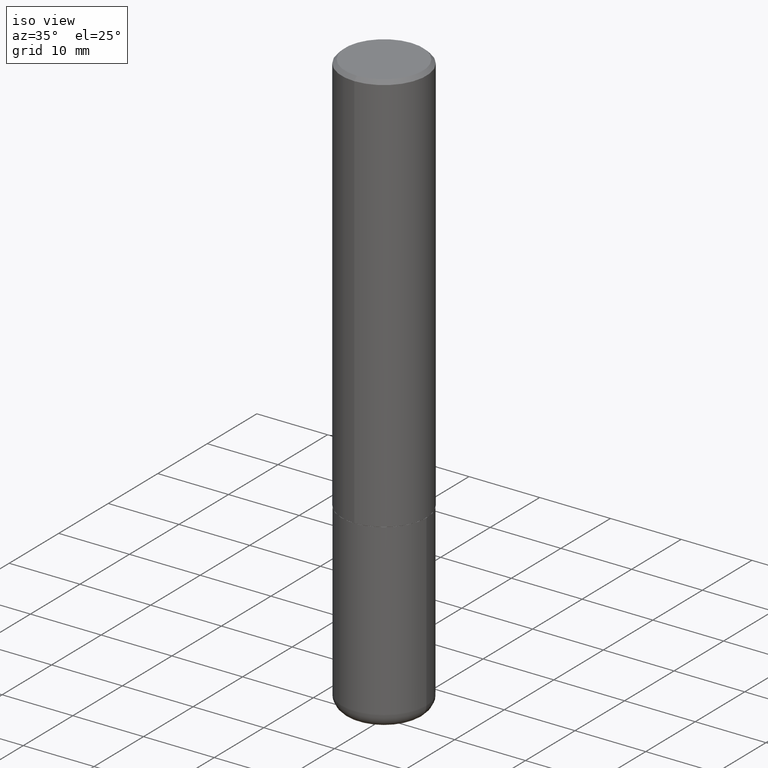
[diagram: clean part render]
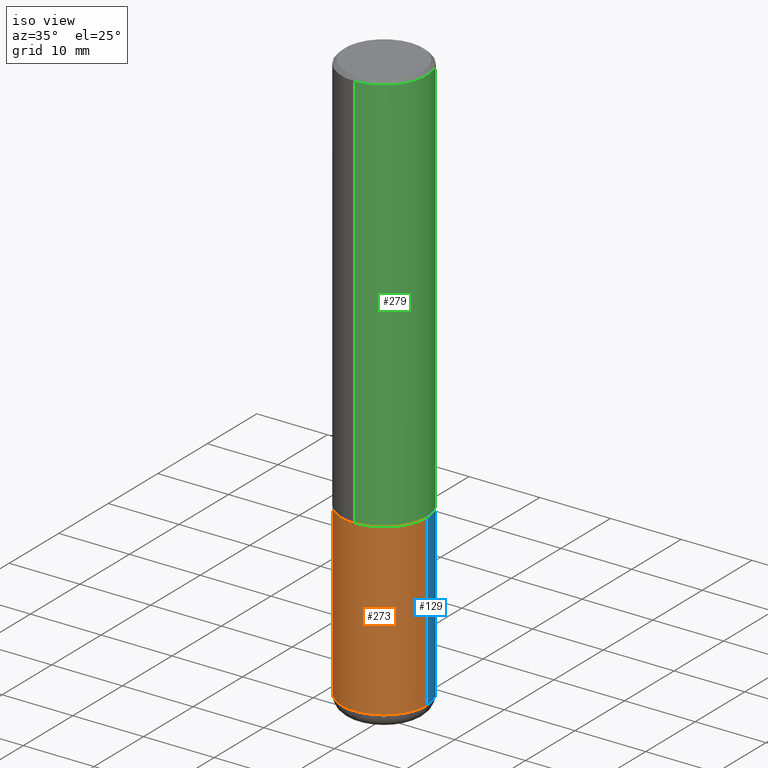
[diagram: same view with three faces highlighted in distinct colors, each labeled with its STEP entity id]
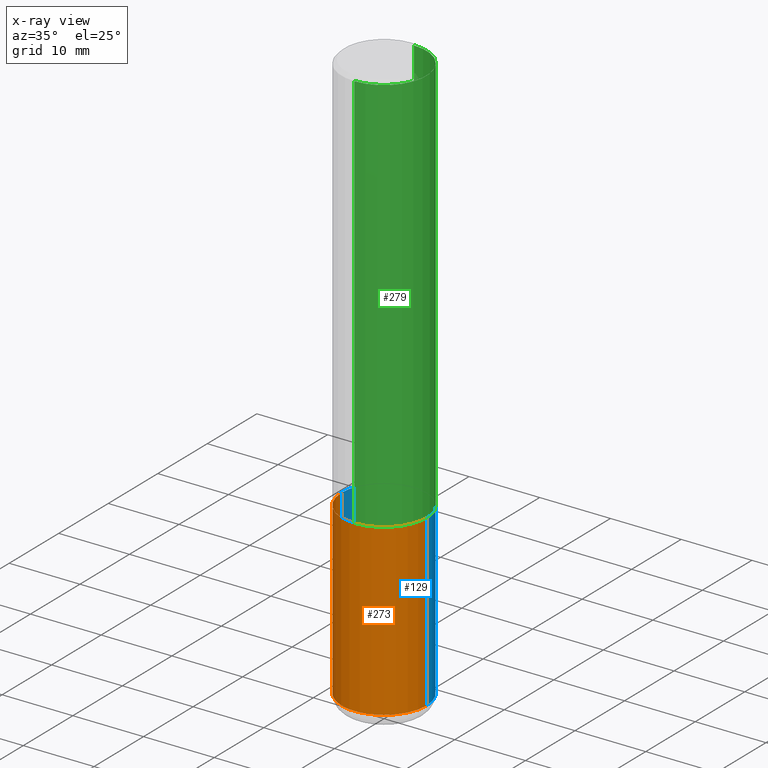
[diagram: x-ray of the same camera — body ghosted, the three highlighted faces saturated]
A machine part, iso view with three faces highlighted in distinct colors.
The next image is the same camera in x-ray (body ghosted, the three faces saturated) — at least one of them is partly hidden behind the body in this view.
Their STEP definitions:

[orange] entity #273 — the highlighted cylindrical surface (partial cylindrical patch) has radius 5.9995 mm, axis along (-0, 0, 1).
#12 = EDGE_LOOP ( 'NONE', ( #99, #135, #108, #336 ) ) ;
#16 = EDGE_CURVE ( 'NONE', #270, #332, #178, .T. ) ;
#23 = DIRECTION ( 'NONE',  ( -2.445468806185136597E-29, 3.491481338843145583E-15, 1.000000000000000000 ) ) ;
#24 = CARTESIAN_POINT ( 'NONE',  ( 0.2361999999999999933, -1.649375784469496131E-15, 1.151752954443000088E-29 ) ) ;
#25 = DIRECTION ( 'NONE',  ( 1.000000000000000000, -6.982962677686264344E-15, 0.000000000000000000 ) ) ;
#34 = AXIS2_PLACEMENT_3D ( 'NONE', #409, #126, #117 ) ;
#41 = CIRCLE ( 'NONE', #48, 0.2362000000000000210 ) ;
#46 = CARTESIAN_POINT ( 'NONE',  ( 0.2362000000000001321, -1.278370977404028805E-14, -3.189000000000000501 ) ) ;
#48 = AXIS2_PLACEMENT_3D ( 'NONE', #316, #23, #25 ) ;
#82 = AXIS2_PLACEMENT_3D ( 'NONE', #121, #188, #222 ) ;
#99 = ORIENTED_EDGE ( 'NONE', *, *, #16, .F. ) ;
#102 = VERTEX_POINT ( 'NONE', #46 ) ;
#108 = ORIENTED_EDGE ( 'NONE', *, *, #203, .T. ) ;
#117 = DIRECTION ( 'NONE',  ( 1.000000000000000000, -6.982962677686266711E-15, 4.876176775795936353E-29 ) ) ;
#121 = CARTESIAN_POINT ( 'NONE',  ( 5.487876547960065873E-29, -7.835233272497903917E-15, -2.244100000000000428 ) ) ;
#126 = DIRECTION ( 'NONE',  ( -2.445468806185136597E-29, 3.491481338843145583E-15, 1.000000000000000000 ) ) ;
#135 = ORIENTED_EDGE ( 'NONE', *, *, #350, .T. ) ;
#148 = CARTESIAN_POINT ( 'NONE',  ( -0.2361999999999999933, 1.678301941865356591E-15, -1.161852468318208757E-29 ) ) ;
#161 = LINE ( 'NONE', #24, #272 ) ;
#164 = FACE_OUTER_BOUND ( 'NONE', #12, .T. ) ;
#178 = LINE ( 'NONE', #148, #213 ) ;
#188 = DIRECTION ( 'NONE',  ( -2.445468806185136597E-29, 3.491481338843145583E-15, 1.000000000000000000 ) ) ;
#203 = EDGE_CURVE ( 'NONE', #102, #261, #161, .T. ) ;
#213 = VECTOR ( 'NONE', #375, 39.37007874015748143 ) ;
#221 = EDGE_CURVE ( 'NONE', #332, #261, #240, .T. ) ;
#222 = DIRECTION ( 'NONE',  ( 1.000000000000000000, -6.982962677686269077E-15, 0.000000000000000000 ) ) ;
#240 = CIRCLE ( 'NONE', #82, 0.2361999999999999933 ) ;
#261 = VERTEX_POINT ( 'NONE', #343 ) ;
#270 = VERTEX_POINT ( 'NONE', #318 ) ;
#272 = VECTOR ( 'NONE', #286, 39.37007874015748143 ) ;
#273 = ADVANCED_FACE ( 'NONE', ( #164 ), #289, .T. ) ;
#286 = DIRECTION ( 'NONE',  ( -2.445468806185136877E-29, 3.491481338843145188E-15, 1.000000000000000000 ) ) ;
#289 = CYLINDRICAL_SURFACE ( 'NONE', #34, 0.2361999999999999933 ) ;
#316 = CARTESIAN_POINT ( 'NONE',  ( 7.798600022924401307E-29, -1.113433398957079310E-14, -3.189000000000000501 ) ) ;
#318 = CARTESIAN_POINT ( 'NONE',  ( -0.2362000000000001321, -9.456032047705438285E-15, -3.189000000000000501 ) ) ;
#332 = VERTEX_POINT ( 'NONE', #342 ) ;
#336 = ORIENTED_EDGE ( 'NONE', *, *, #221, .F. ) ;
#342 = CARTESIAN_POINT ( 'NONE',  ( -0.2361999999999999933, -7.806481689168991326E-15, -2.244100000000000428 ) ) ;
#343 = CARTESIAN_POINT ( 'NONE',  ( 0.2361999999999999933, -9.484609056967400443E-15, -2.244100000000000428 ) ) ;
#350 = EDGE_CURVE ( 'NONE', #270, #102, #41, .T. ) ;
#375 = DIRECTION ( 'NONE',  ( -2.445468806185136877E-29, 3.491481338843145188E-15, 1.000000000000000000 ) ) ;
#409 = CARTESIAN_POINT ( 'NONE',  ( 0.000000000000000000, 0.000000000000000000, 0.000000000000000000 ) ) ;

[blue] entity #129 — the highlighted cylindrical surface (partial cylindrical patch) has radius 5.9995 mm, axis along (-0, 0, 1).
#15 = CARTESIAN_POINT ( 'NONE',  ( 5.487876547960065873E-29, -7.835233272497903917E-15, -2.244100000000000428 ) ) ;
#16 = EDGE_CURVE ( 'NONE', #270, #332, #178, .T. ) ;
#24 = CARTESIAN_POINT ( 'NONE',  ( 0.2361999999999999933, -1.649375784469496131E-15, 1.151752954443000088E-29 ) ) ;
#39 = EDGE_CURVE ( 'NONE', #261, #332, #73, .T. ) ;
#46 = CARTESIAN_POINT ( 'NONE',  ( 0.2362000000000001321, -1.278370977404028805E-14, -3.189000000000000501 ) ) ;
#61 = ORIENTED_EDGE ( 'NONE', *, *, #16, .T. ) ;
#70 = ORIENTED_EDGE ( 'NONE', *, *, #39, .F. ) ;
#73 = CIRCLE ( 'NONE', #315, 0.2361999999999999933 ) ;
#76 = DIRECTION ( 'NONE',  ( -2.445468806185136597E-29, 3.491481338843145583E-15, 1.000000000000000000 ) ) ;
#89 = ORIENTED_EDGE ( 'NONE', *, *, #203, .F. ) ;
#102 = VERTEX_POINT ( 'NONE', #46 ) ;
#129 = ADVANCED_FACE ( 'NONE', ( #335 ), #211, .T. ) ;
#148 = CARTESIAN_POINT ( 'NONE',  ( -0.2361999999999999933, 1.678301941865356591E-15, -1.161852468318208757E-29 ) ) ;
#161 = LINE ( 'NONE', #24, #272 ) ;
#172 = CARTESIAN_POINT ( 'NONE',  ( 7.798600022924401307E-29, -1.113433398957079310E-14, -3.189000000000000501 ) ) ;
#178 = LINE ( 'NONE', #148, #213 ) ;
#191 = CIRCLE ( 'NONE', #223, 0.2362000000000000210 ) ;
#200 = AXIS2_PLACEMENT_3D ( 'NONE', #373, #76, #377 ) ;
#203 = EDGE_CURVE ( 'NONE', #102, #261, #161, .T. ) ;
#211 = CYLINDRICAL_SURFACE ( 'NONE', #200, 0.2361999999999999933 ) ;
#213 = VECTOR ( 'NONE', #375, 39.37007874015748143 ) ;
#223 = AXIS2_PLACEMENT_3D ( 'NONE', #172, #302, #362 ) ;
#261 = VERTEX_POINT ( 'NONE', #343 ) ;
#270 = VERTEX_POINT ( 'NONE', #318 ) ;
#272 = VECTOR ( 'NONE', #286, 39.37007874015748143 ) ;
#278 = DIRECTION ( 'NONE',  ( -2.445468806185136597E-29, 3.491481338843145583E-15, 1.000000000000000000 ) ) ;
#286 = DIRECTION ( 'NONE',  ( -2.445468806185136877E-29, 3.491481338843145188E-15, 1.000000000000000000 ) ) ;
#302 = DIRECTION ( 'NONE',  ( -2.445468806185136597E-29, 3.491481338843145583E-15, 1.000000000000000000 ) ) ;
#306 = EDGE_CURVE ( 'NONE', #102, #270, #191, .T. ) ;
#315 = AXIS2_PLACEMENT_3D ( 'NONE', #15, #278, #401 ) ;
#318 = CARTESIAN_POINT ( 'NONE',  ( -0.2362000000000001321, -9.456032047705438285E-15, -3.189000000000000501 ) ) ;
#332 = VERTEX_POINT ( 'NONE', #342 ) ;
#335 = FACE_OUTER_BOUND ( 'NONE', #397, .T. ) ;
#342 = CARTESIAN_POINT ( 'NONE',  ( -0.2361999999999999933, -7.806481689168991326E-15, -2.244100000000000428 ) ) ;
#343 = CARTESIAN_POINT ( 'NONE',  ( 0.2361999999999999933, -9.484609056967400443E-15, -2.244100000000000428 ) ) ;
#362 = DIRECTION ( 'NONE',  ( 1.000000000000000000, -6.982962677686264344E-15, 0.000000000000000000 ) ) ;
#368 = ORIENTED_EDGE ( 'NONE', *, *, #306, .T. ) ;
#373 = CARTESIAN_POINT ( 'NONE',  ( 0.000000000000000000, 0.000000000000000000, 0.000000000000000000 ) ) ;
#375 = DIRECTION ( 'NONE',  ( -2.445468806185136877E-29, 3.491481338843145188E-15, 1.000000000000000000 ) ) ;
#377 = DIRECTION ( 'NONE',  ( 1.000000000000000000, -6.982962677686266711E-15, 4.876176775795936353E-29 ) ) ;
#397 = EDGE_LOOP ( 'NONE', ( #368, #61, #70, #89 ) ) ;
#401 = DIRECTION ( 'NONE',  ( 1.000000000000000000, -6.982962677686269077E-15, 0.000000000000000000 ) ) ;

[green] entity #279 — the highlighted cylindrical surface (partial cylindrical patch) has radius 5.9995 mm, axis along (-0, 0, 1).
#10 = CARTESIAN_POINT ( 'NONE',  ( -1.620449627073635276E-15, -0.2362000000000001043, -0.01999999999999925449 ) ) ;
#27 = DIRECTION ( 'NONE',  ( -6.982962677686265922E-15, -1.000000000000000000, 3.469747663417772663E-15 ) ) ;
#33 = EDGE_CURVE ( 'NONE', #55, #298, #282, .T. ) ;
#42 = DIRECTION ( 'NONE',  ( -6.982962677686265922E-15, -1.000000000000000000, 3.487819265831411350E-15 ) ) ;
#55 = VERTEX_POINT ( 'NONE', #407 ) ;
#66 = VERTEX_POINT ( 'NONE', #10 ) ;
#67 = EDGE_CURVE ( 'NONE', #66, #298, #179, .T. ) ;
#79 = ORIENTED_EDGE ( 'NONE', *, *, #391, .F. ) ;
#93 = CARTESIAN_POINT ( 'NONE',  ( 0.000000000000000000, 0.000000000000000000, 0.000000000000000000 ) ) ;
#94 = ORIENTED_EDGE ( 'NONE', *, *, #33, .T. ) ;
#105 = ORIENTED_EDGE ( 'NONE', *, *, #169, .T. ) ;
#116 = CARTESIAN_POINT ( 'NONE',  ( 4.897118697256550314E-31, -6.974111012323692057E-17, -0.02000000000000007674 ) ) ;
#130 = AXIS2_PLACEMENT_3D ( 'NONE', #293, #322, #27 ) ;
#136 = AXIS2_PLACEMENT_3D ( 'NONE', #116, #244, #42 ) ;
#169 = EDGE_CURVE ( 'NONE', #376, #55, #173, .T. ) ;
#173 = CIRCLE ( 'NONE', #130, 0.2362000000000002986 ) ;
#179 = CIRCLE ( 'NONE', #136, 0.2362000000000000210 ) ;
#182 = CARTESIAN_POINT ( 'NONE',  ( 1.678301941865357577E-15, 0.2362000000000001598, -8.236425105554254759E-16 ) ) ;
#216 = EDGE_LOOP ( 'NONE', ( #105, #94, #267, #79 ) ) ;
#227 = DIRECTION ( 'NONE',  ( -6.982962677686265922E-15, -1.000000000000000000, 3.487055506161832692E-15 ) ) ;
#235 = LINE ( 'NONE', #269, #394 ) ;
#244 = DIRECTION ( 'NONE',  ( -2.448559348628265803E-29, 3.487055506161832692E-15, 1.000000000000000000 ) ) ;
#251 = CARTESIAN_POINT ( 'NONE',  ( -1.649375784469443277E-15, -0.2362000000000081257, -2.243099999999999206 ) ) ;
#253 = FACE_OUTER_BOUND ( 'NONE', #216, .T. ) ;
#260 = CYLINDRICAL_SURFACE ( 'NONE', #364, 0.2362000000000001598 ) ;
#267 = ORIENTED_EDGE ( 'NONE', *, *, #67, .F. ) ;
#269 = CARTESIAN_POINT ( 'NONE',  ( -1.649375784469497117E-15, -0.2362000000000001598, 8.236425105554254759E-16 ) ) ;
#274 = DIRECTION ( 'NONE',  ( -2.448559348628265803E-29, 3.487055506161832692E-15, 1.000000000000000000 ) ) ;
#279 = ADVANCED_FACE ( 'NONE', ( #253 ), #260, .T. ) ;
#282 = LINE ( 'NONE', #182, #385 ) ;
#293 = CARTESIAN_POINT ( 'NONE',  ( 5.492363474908063915E-29, -7.821814205871606912E-15, -2.243100000000000094 ) ) ;
#297 = DIRECTION ( 'NONE',  ( -2.448559348628265803E-29, 3.487055506161832692E-15, 1.000000000000000000 ) ) ;
#298 = VERTEX_POINT ( 'NONE', #393 ) ;
#322 = DIRECTION ( 'NONE',  ( -2.448559348628265803E-29, 3.487055506161832692E-15, 1.000000000000000000 ) ) ;
#364 = AXIS2_PLACEMENT_3D ( 'NONE', #93, #381, #227 ) ;
#376 = VERTEX_POINT ( 'NONE', #251 ) ;
#381 = DIRECTION ( 'NONE',  ( -2.448559348628265803E-29, 3.487055506161832692E-15, 1.000000000000000000 ) ) ;
#385 = VECTOR ( 'NONE', #274, 39.37007874015748143 ) ;
#391 = EDGE_CURVE ( 'NONE', #376, #66, #235, .T. ) ;
#393 = CARTESIAN_POINT ( 'NONE',  ( 1.649375784469496722E-15, 0.2361999999999999655, -0.02000000000000090247 ) ) ;
#394 = VECTOR ( 'NONE', #297, 39.37007874015748143 ) ;
#407 = CARTESIAN_POINT ( 'NONE',  ( 1.678301941865385779E-15, 0.2361999999999924715, -2.243100000000000982 ) ) ;